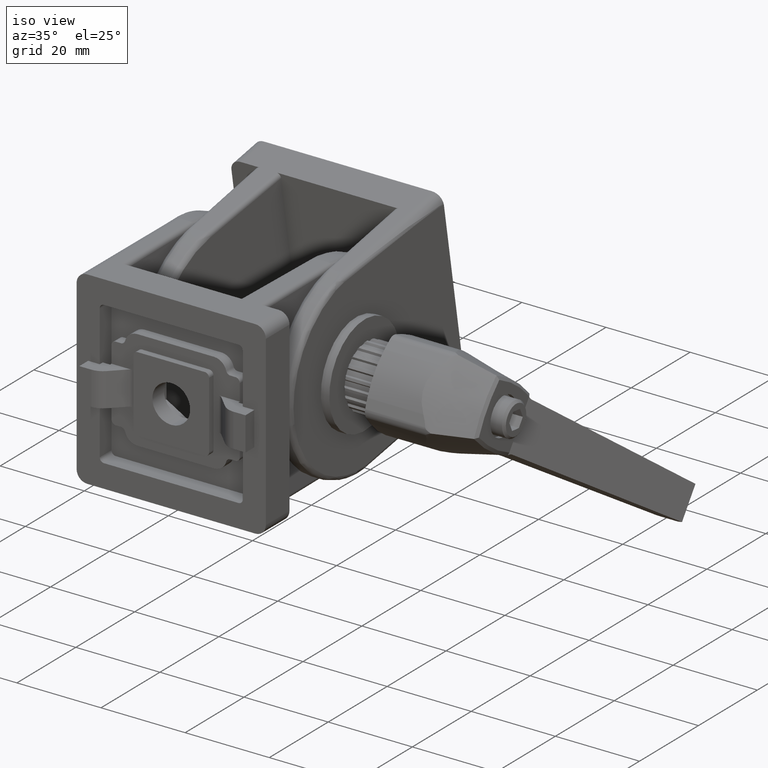
[diagram: clean part render]
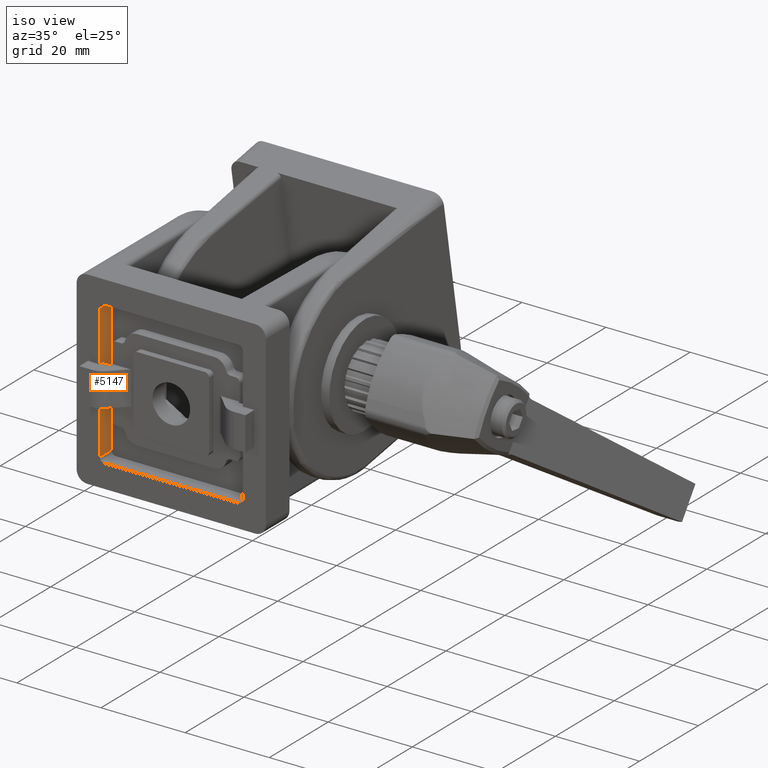
[diagram: same view with one face highlighted and labeled with its STEP entity id]
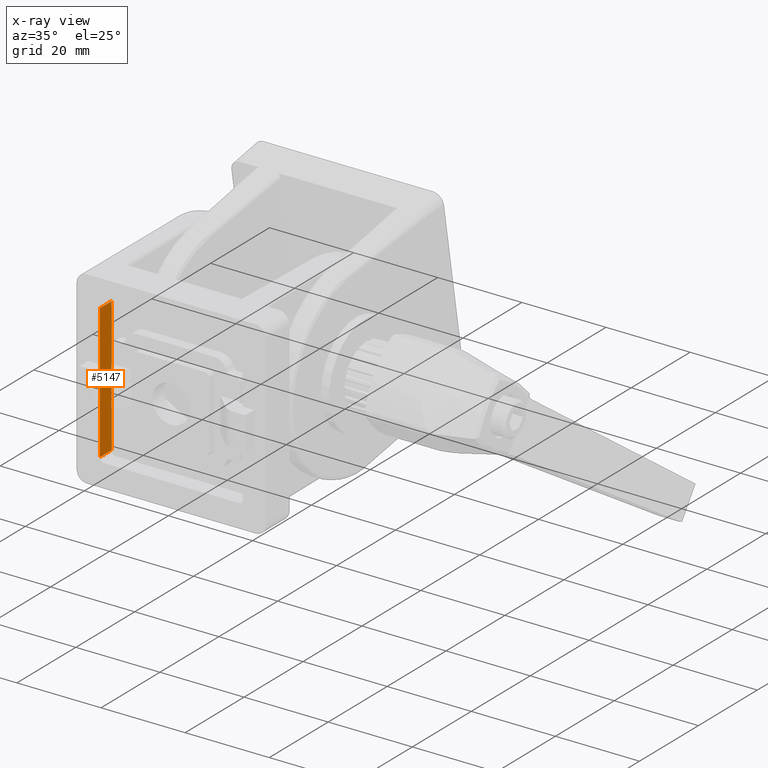
[diagram: x-ray of the same camera — body ghosted, the highlighted face saturated]
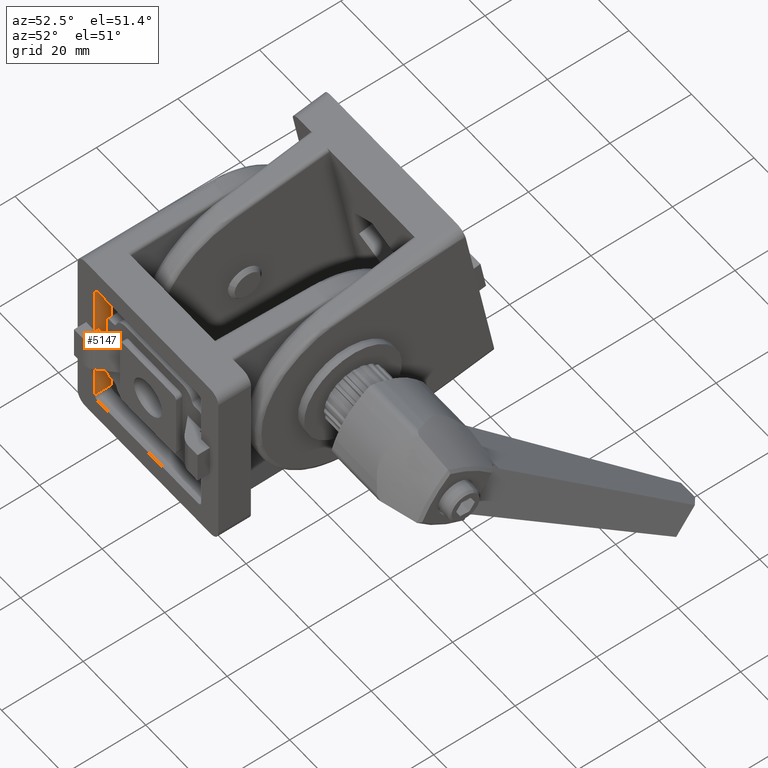
[diagram: same view with one face highlighted and labeled with its STEP entity id]
A machine part, iso view. The second image highlights one B-rep face of the part: STEP entity #5147.
The next image is the same camera in x-ray: the body ghosted, the highlighted face saturated — about 0% of this face is hidden behind the body in this view.
A second angle (auxiliary view) of the same face is appended — the face is thin or edge-on in the first view.
In plain terms, the highlighted planar face has unit normal (-1, 0, 0).
Its self-contained STEP definition (entity closure, byte-faithful):
#95=LINE('',#7730,#526);
#128=LINE('',#8041,#559);
#129=LINE('',#8043,#560);
#130=LINE('',#8044,#561);
#526=VECTOR('',#6048,32.);
#559=VECTOR('',#6113,4.);
#560=VECTOR('',#6114,32.);
#561=VECTOR('',#6115,4.);
#955=PLANE('',#5475);
#1308=FACE_OUTER_BOUND('',#1612,.T.);
#1612=EDGE_LOOP('',(#3666,#3667,#3668,#3669));
#2282=VERTEX_POINT('',#7727);
#2283=VERTEX_POINT('',#7729);
#2318=VERTEX_POINT('',#8040);
#2319=VERTEX_POINT('',#8042);
#2810=EDGE_CURVE('',#2283,#2282,#95,.T.);
#2862=EDGE_CURVE('',#2282,#2318,#128,.T.);
#2863=EDGE_CURVE('',#2319,#2318,#129,.T.);
#2864=EDGE_CURVE('',#2319,#2283,#130,.T.);
#3666=ORIENTED_EDGE('',*,*,#2810,.T.);
#3667=ORIENTED_EDGE('',*,*,#2862,.T.);
#3668=ORIENTED_EDGE('',*,*,#2863,.F.);
#3669=ORIENTED_EDGE('',*,*,#2864,.T.);
#5147=ADVANCED_FACE('',(#1308),#955,.F.);
#5475=AXIS2_PLACEMENT_3D('',#8039,#6111,#6112);
#6048=DIRECTION('',(0.,0.,-1.));
#6111=DIRECTION('center_axis',(-1.,0.,0.));
#6112=DIRECTION('ref_axis',(0.,0.,1.));
#6113=DIRECTION('',(0.,1.,0.));
#6114=DIRECTION('',(0.,0.,-1.));
#6115=DIRECTION('',(0.,-1.,0.));
#7727=CARTESIAN_POINT('',(-17.,0.,6.5));
#7729=CARTESIAN_POINT('',(-17.,0.,38.5));
#7730=CARTESIAN_POINT('',(-17.,0.,5.5));
#8039=CARTESIAN_POINT('Origin',(-17.,4.,5.5));
#8040=CARTESIAN_POINT('',(-17.,4.,6.5));
#8041=CARTESIAN_POINT('',(-17.,4.,6.5));
#8042=CARTESIAN_POINT('',(-17.,4.,38.5));
#8043=CARTESIAN_POINT('',(-17.,4.,5.5));
#8044=CARTESIAN_POINT('',(-17.,0.,38.5));